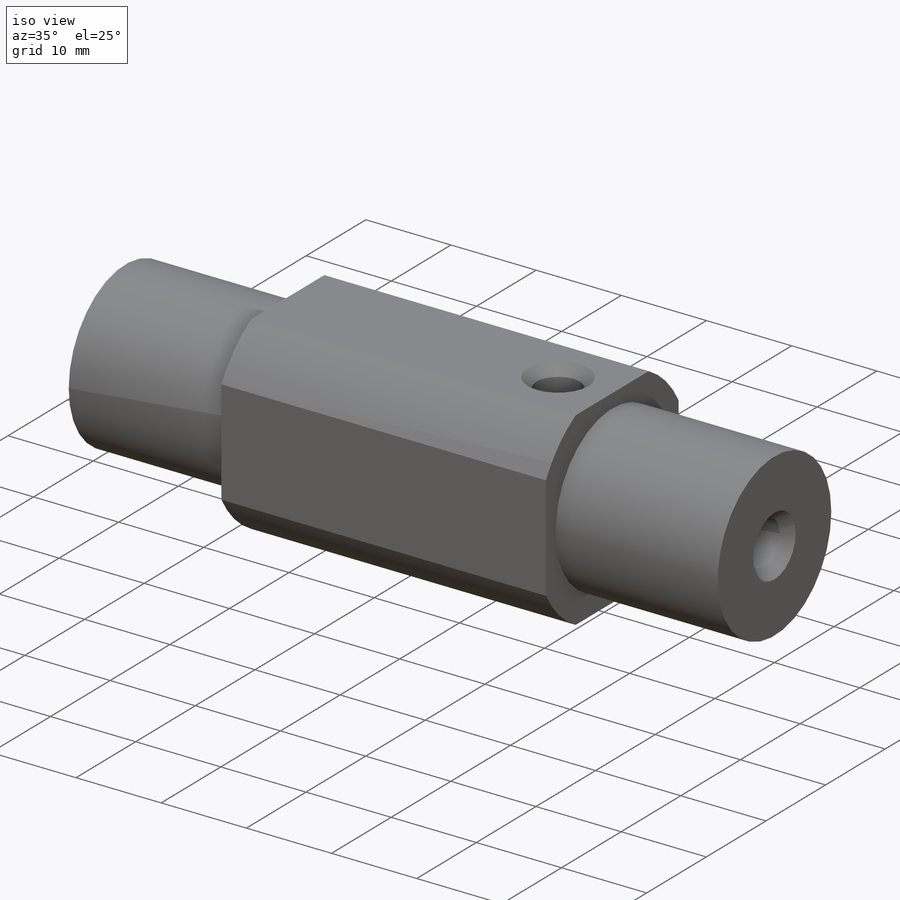
[diagram: iso view]
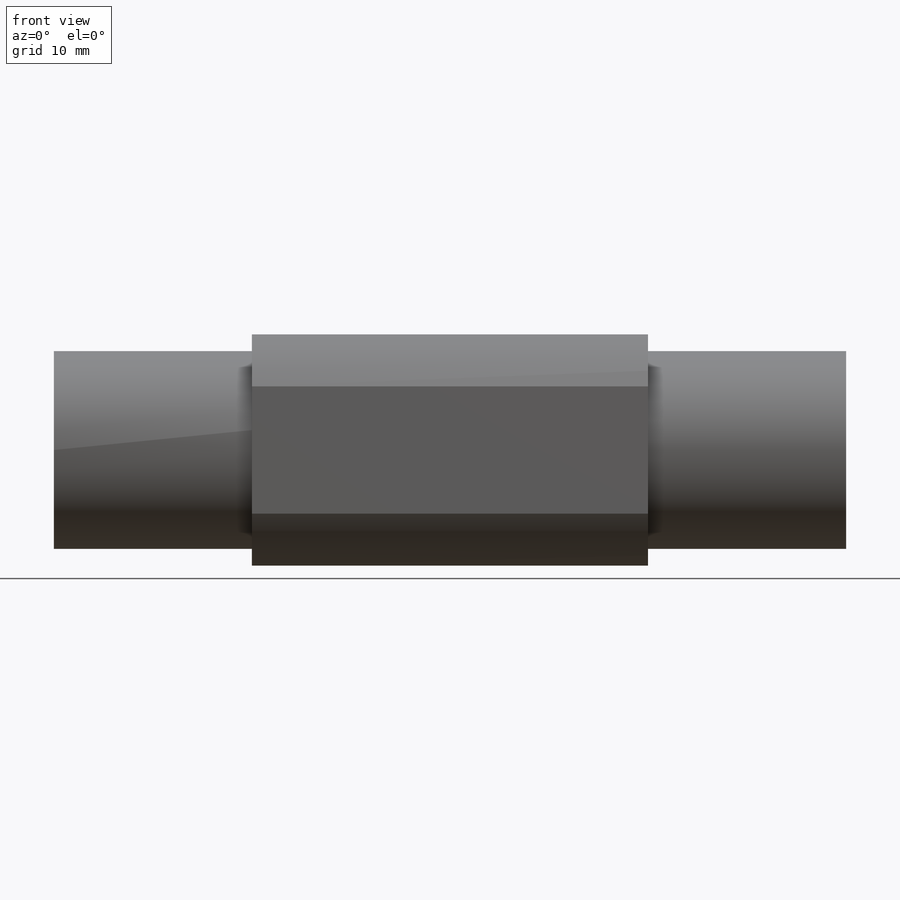
[diagram: front view]
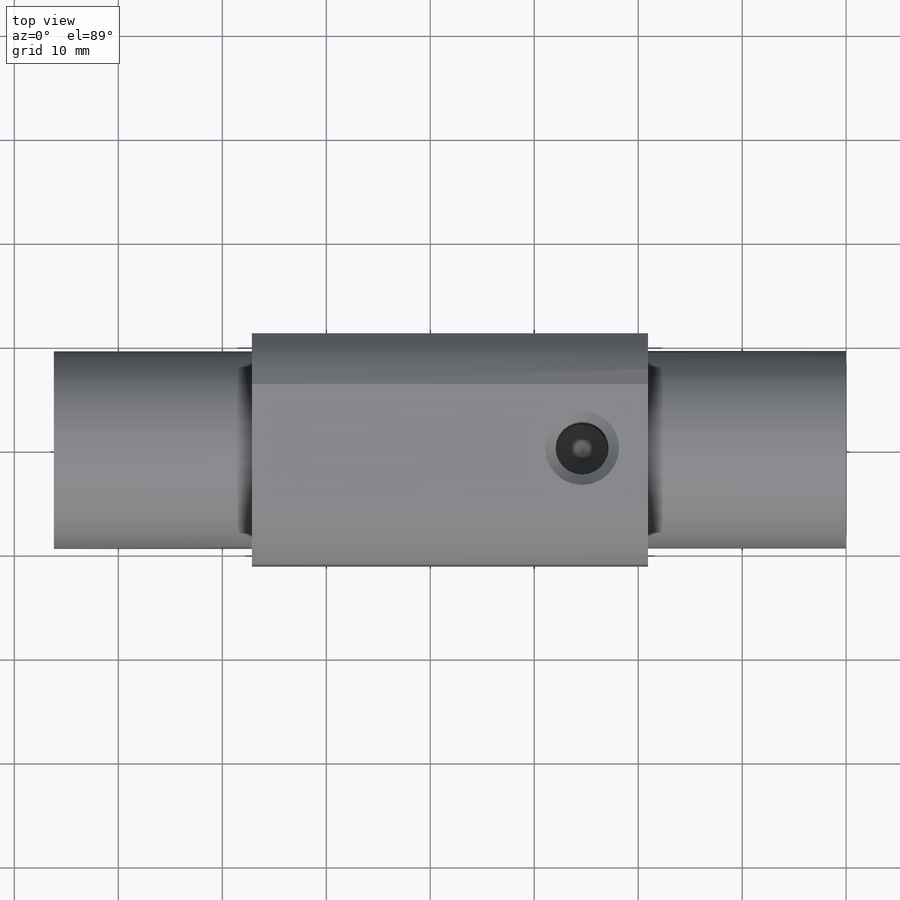
[diagram: top view]
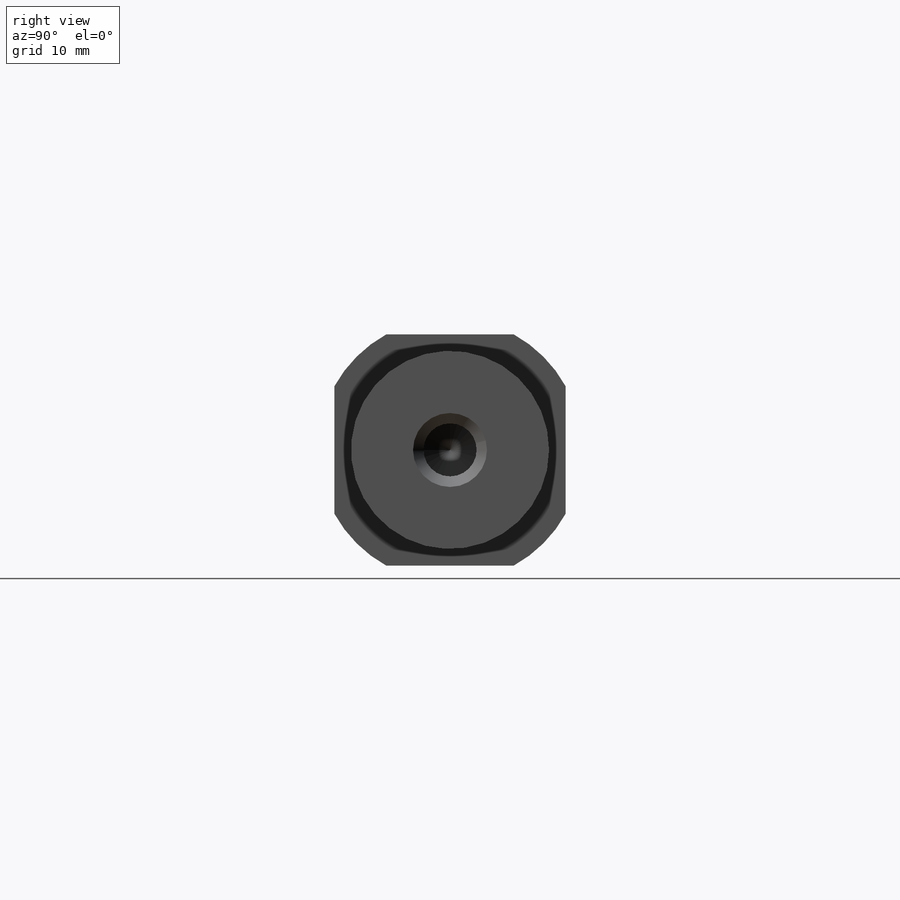
[diagram: right view]
SOLIDWORKS PART (.sldprt)
format: sldprt  version: not decoded by parser v0  size: 388,096 bytes
history: native  units: mm
features: sketch x15, cut_extrude x6, thread x5, hole x4, plane x2, material x1, extrude x1 (+12 scaffold rows collapsed)
feature tree (46):
  scaffold x12  (default folders/planes/origin — collapsed)
  material  "6061-T6 (SS)"
  sketch  "Sketch1"  dims[D1=~21.992264mm]
  extrude  "Boss-Extrude1"  Depth=79.375mm
  sketch  "Sketch2"  dims[D1=~8.179848mm]
  cut_extrude  "Cut-Extrude1"  Depth=19.05mm
  plane  "Plane1"  Offset=11.1252mm
  sketch  "Sketch3"
  cut_extrude  "Cut-Extrude2"  Depth=7.62mm
  plane  "Plane3"  Offset=11.1252mm
  sketch  "Sketch7"
  cut_extrude  "Cut-Extrude5"  Depth=25.4mm
  hole  "1/4-20 Tapped Hole2"  [1 undecoded]
  sketch  "Sketch15"  dims[D1=25.4mm D2=11.1252mm]
  thread  "Hole Thread2"  Diameter=12.7mm  [1 undecoded]
  sketch  "Sketch14"  dims[hole-wizard template sketch: 40 standard entries collapsed; hole parameters kept: c13.Tap Drill Depth=16.002mm c13.Near C'Sink Dia.=7.112mm c13.D4=~33.297463mm c13.Near C'Sink Angle=82.0deg c14.D5=~14.816244mm c14.Drill Angle=118.0deg]
  thread  "Cosmetic Thread1"  Diameter=5mm  [1 undecoded]
  hole  "1/4-20 Tapped Hole3"  Diameter=5.1054mm Depth=16.002mm
  sketch  "Sketch17"  dims[D1=~0.736967mm]
  sketch  "Sketch16"  dims[hole-wizard template sketch: 40 standard entries collapsed; hole parameters kept: c13.Tap Drill Depth=16.002mm c13.Near C'Sink Dia.=7.112mm c13.D4=~33.297463mm c13.Near C'Sink Angle=82.0deg c14.D5=~14.816244mm c14.Drill Angle=118.0deg]
  thread  "Hole Thread3"  Diameter=12.7mm  [1 undecoded]
  sketch  "Sketch18"  dims[D1=~8.757561mm]
  sketch  "Sketch26"  dims[D1=11.1252mm D2=11.1252mm]
  cut_extrude  "Cut-Extrude10"  Depth=88.9mm
  cut_extrude  "Cut-Extrude12"  Depth=3.175mm
  sketch  "Sketch30"  dims[D1=~8.609624mm]
  cut_extrude  "Cut-Extrude13"  Depth=19.05mm
  hole  "1/4-20 Tapped Hole6"  Diameter=5.1054mm Depth=16.002mm
  sketch  "Sketch32"
  sketch  "Sketch31"  dims[hole-wizard template sketch: 40 standard entries collapsed; hole parameters kept: c13.Tap Drill Depth=16.002mm c13.Near C'Sink Dia.=7.112mm c13.D4=~33.297463mm c13.Near C'Sink Angle=82.0deg c14.D5=~14.816244mm c14.Drill Angle=118.0deg]
  thread  "Hole Thread6"  Diameter=12.7mm  [1 undecoded]
  hole  "1/4-20 Tapped Hole7"  Diameter=5.1054mm Depth=16.002mm
  sketch  "Sketch36"  dims[D1=50.8mm D2=11.1252mm]
  sketch  "Sketch35"  dims[hole-wizard template sketch: 40 standard entries collapsed; hole parameters kept: c13.Tap Drill Depth=16.002mm c13.Near C'Sink Dia.=7.112mm c13.D4=~33.297463mm c13.Near C'Sink Angle=82.0deg c14.D5=~14.816244mm c14.Drill Angle=118.0deg]
  thread  "Hole Thread7"  Diameter=12.7mm  [1 undecoded]
decode coverage: 27 of 31 modeling features carry decoded parameters
note: ~ marks probable driven/reference dimensions
note: 6 parameter values undecoded
summary: Diameter pulled from absorbed wizard sketch
note: suppression state not decoded; provenance and decode notes live in map.json
